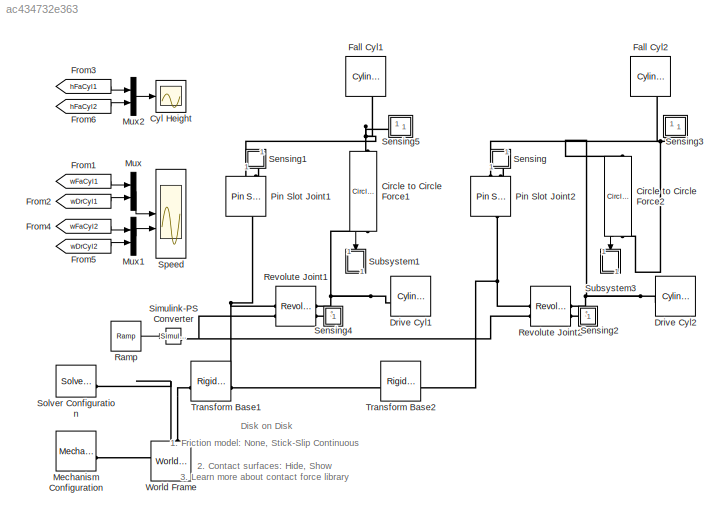
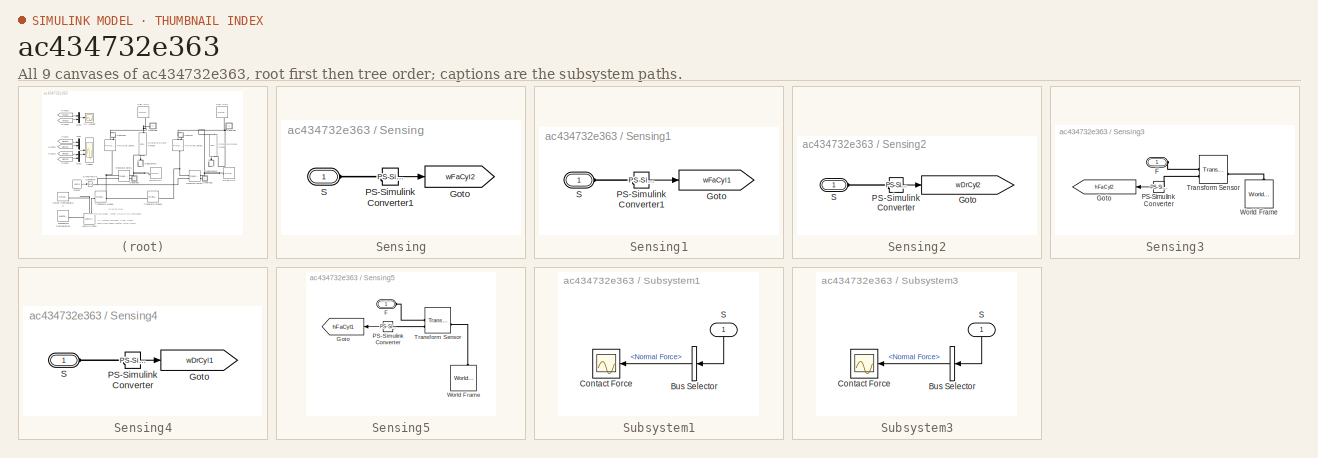
[diagram: thumbnail index - all 9 canvases of the model, root first then tree order]
MODEL slx_ac434732e363
KIND model
CONFIG AbsTol = 1e-5
CONFIG EnableMultiTasking = on
CONFIG FixedStep = auto
CONFIG MaxStep = 1e-2
CONFIG MinStep = auto
CONFIG PostLoadFcn = warning off Simulink:Engine:UsingDefaultMaxStepSize\n
CONFIG RelTol = 1e-4
CONFIG SampleTimeConstraint = Unconstrained
CONFIG SolverName = ode15s
CONFIG StartFcn = tic;
CONFIG StartTime = 0.0
CONFIG StopFcn = Elapsed_Sim_Time = toc;\ndisp(['Elapsed Sim Time = ' num2str(Elapsed_Sim_Time)]);\n
CONFIG StopTime = 15
WORKSPACE source: MATLAB code (in-file)
WORKSPACE code: Drive_Cyl.length = 0.2;
WORKSPACE code: Drive_Cyl.radius = 0.1;
WORKSPACE code: Drive_Cyl.density = 1000;
WORKSPACE code: Fall_Cyl.length = 0.2;
WORKSPACE code: Fall_Cyl.radius = 0.2;
WORKSPACE code: Fall_Cyl.density = 1000;
BLOCK [Reference] Circle to Circle Force1  REF=Contact_Forces_Lib/2D/Circle to Circle Force
  NameLocation = right
  SourceBlock = Contact_Forces_Lib/2D/Circle to Circle Force
  SourceProductName = Simscape Multibody Contact Forces Library
  SourceType = Circle to Circle Force
BLOCK [Reference] Circle to Circle Force2  REF=Contact_Forces_Lib/2D/Circle to Circle Force
  NameLocation = left
  SourceBlock = Contact_Forces_Lib/2D/Circle to Circle Force
  SourceProductName = Simscape Multibody Contact Forces Library
  SourceType = Circle to Circle Force
BLOCK [Scope] Cyl Height
  Floating = off
  NumInputPorts = 1
  ScopeSpecificationString = Simulink.scopes.TimeScopeBlockCfg('CurrentConfiguration', extmgr.ConfigurationSet(extmgr.Configuration('Core','General UI',true,'FigureColor',[0.501960784313725 0.501960784313725 0.501960784313725]),extmgr.Configuration('Core','Source UI',true),extmgr.Configuration('Sources','WiredSimulink',true,'DataLoggingVariableName','ScopeData2','DataLoggingSaveFormat','StructureWithTime','DataLoggingDecimati...<+2635ch>
BLOCK [Reference] Drive Cyl1  REF=Parts_Lib/Cylinder
  SourceBlock = Parts_Lib/Cylinder
  SourceType = Solid Cylinder with Markings
BLOCK [Reference] Drive Cyl2  REF=Parts_Lib/Cylinder
  SourceBlock = Parts_Lib/Cylinder
  SourceType = Solid Cylinder with Markings
BLOCK [Reference] Fall Cyl1  REF=Parts_Lib/Cylinder
  NameLocation = right
  SourceBlock = Parts_Lib/Cylinder
  SourceType = Solid Cylinder with Markings
BLOCK [Reference] Fall Cyl2  REF=Parts_Lib/Cylinder
  NameLocation = right
  SourceBlock = Parts_Lib/Cylinder
  SourceType = Solid Cylinder with Markings
BLOCK [From] From1
  GotoTag = wFaCyl1
  TagVisibility = global
BLOCK [From] From2
  GotoTag = wDrCyl1
  TagVisibility = global
BLOCK [From] From3
  GotoTag = hFaCyl1
  TagVisibility = global
BLOCK [From] From4
  GotoTag = wFaCyl2
  TagVisibility = global
BLOCK [From] From5
  GotoTag = wDrCyl2
  TagVisibility = global
BLOCK [From] From6
  GotoTag = hFaCyl2
  TagVisibility = global
BLOCK [Reference] Mechanism Configuration  REF=sm_lib/Utilities/Mechanism
Configuration
  SourceBlock = sm_lib/Utilities/Mechanism\nConfiguration
  SourceType = Mechanism\nConfiguration
BLOCK [Mux] Mux
  DisplayOption = bar
  Inputs = 2
BLOCK [Mux] Mux1
  DisplayOption = bar
  Inputs = 2
BLOCK [Mux] Mux2
  DisplayOption = bar
  Inputs = 2
BLOCK [Reference] Pin Slot Joint1  REF=sm_lib/Joints/Pin Slot Joint
  NameLocation = right
  SourceBlock = sm_lib/Joints/Pin Slot Joint
  SourceType = Pin Slot Joint
BLOCK [Reference] Pin Slot Joint2  REF=sm_lib/Joints/Pin Slot Joint
  NameLocation = right
  SourceBlock = sm_lib/Joints/Pin Slot Joint
  SourceType = Pin Slot Joint
BLOCK [Reference] Ramp  REF=simulink/Sources/Ramp
  SourceBlock = simulink/Sources/Ramp
  SourceType = Ramp
BLOCK [Reference] Revolute Joint1  REF=sm_lib/Joints/Revolute Joint
  NameLocation = top
  SourceBlock = sm_lib/Joints/Revolute Joint
  SourceType = Revolute Joint
BLOCK [Reference] Revolute Joint2  REF=sm_lib/Joints/Revolute Joint
  NameLocation = top
  SourceBlock = sm_lib/Joints/Revolute Joint
  SourceType = Revolute Joint
BLOCK [SubSystem] Sensing
  NameLocation = right
BLOCK [Goto] Sensing/Goto
  GotoTag = wFaCyl2
  TagVisibility = global
BLOCK [Reference] Sensing/PS-Simulink Converter1  REF=nesl_utility/PS-Simulink
Converter
  SourceBlock = nesl_utility/PS-Simulink\nConverter
  SourceType = PS-Simulink\nConverter
BLOCK [PMIOPort] Sensing/S
  Side = Left
BLOCK [SubSystem] Sensing1
  NameLocation = right
BLOCK [Goto] Sensing1/Goto
  GotoTag = wFaCyl1
  TagVisibility = global
BLOCK [Reference] Sensing1/PS-Simulink Converter1  REF=nesl_utility/PS-Simulink
Converter
  SourceBlock = nesl_utility/PS-Simulink\nConverter
  SourceType = PS-Simulink\nConverter
BLOCK [PMIOPort] Sensing1/S
  Side = Left
BLOCK [SubSystem] Sensing2
BLOCK [Goto] Sensing2/Goto
  GotoTag = wDrCyl2
  TagVisibility = global
BLOCK [Reference] Sensing2/PS-Simulink Converter  REF=nesl_utility/PS-Simulink
Converter
  SourceBlock = nesl_utility/PS-Simulink\nConverter
  SourceType = PS-Simulink\nConverter
BLOCK [PMIOPort] Sensing2/S
  Side = Left
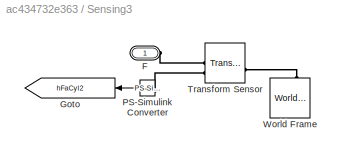
BLOCK [SubSystem] Sensing3
  NameLocation = top
BLOCK [PMIOPort] Sensing3/F
  NameLocation = top
  Side = Left
BLOCK [Goto] Sensing3/Goto
  GotoTag = hFaCyl2
  NameLocation = top
  TagVisibility = global
BLOCK [Reference] Sensing3/PS-Simulink Converter  REF=nesl_utility/PS-Simulink
Converter
  NameLocation = top
  SourceBlock = nesl_utility/PS-Simulink\nConverter
  SourceType = PS-Simulink\nConverter
BLOCK [Reference] Sensing3/Transform Sensor  REF=sm_lib/Frames and
Transforms/Transform
Sensor
  SourceBlock = sm_lib/Frames and\nTransforms/Transform\nSensor
  SourceType = Transform\nSensor
BLOCK [Reference] Sensing3/World Frame  REF=sm_lib/Frames and
Transforms/World Frame
  NameLocation = right
  SourceBlock = sm_lib/Frames and\nTransforms/World Frame
  SourceType = World Frame
BLOCK [SubSystem] Sensing4
BLOCK [Goto] Sensing4/Goto
  GotoTag = wDrCyl1
  TagVisibility = global
BLOCK [Reference] Sensing4/PS-Simulink Converter  REF=nesl_utility/PS-Simulink
Converter
  SourceBlock = nesl_utility/PS-Simulink\nConverter
  SourceType = PS-Simulink\nConverter
BLOCK [PMIOPort] Sensing4/S
  Side = Left
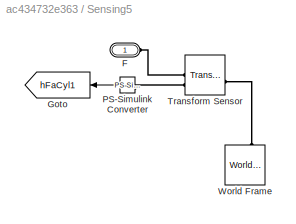
BLOCK [SubSystem] Sensing5
  NameLocation = top
BLOCK [PMIOPort] Sensing5/F
  NameLocation = top
  Side = Left
BLOCK [Goto] Sensing5/Goto
  GotoTag = hFaCyl1
  NameLocation = top
  TagVisibility = global
BLOCK [Reference] Sensing5/PS-Simulink Converter  REF=nesl_utility/PS-Simulink
Converter
  NameLocation = top
  SourceBlock = nesl_utility/PS-Simulink\nConverter
  SourceType = PS-Simulink\nConverter
BLOCK [Reference] Sensing5/Transform Sensor  REF=sm_lib/Frames and
Transforms/Transform
Sensor
  SourceBlock = sm_lib/Frames and\nTransforms/Transform\nSensor
  SourceType = Transform\nSensor
BLOCK [Reference] Sensing5/World Frame  REF=sm_lib/Frames and
Transforms/World Frame
  NameLocation = right
  SourceBlock = sm_lib/Frames and\nTransforms/World Frame
  SourceType = World Frame
BLOCK [Reference] Simulink-PS Converter  REF=nesl_utility/Simulink-PS
Converter
  SourceBlock = nesl_utility/Simulink-PS\nConverter
  SourceType = Simulink-PS\nConverter
BLOCK [Reference] Solver Configuration  REF=nesl_utility/Solver
Configuration
  SourceBlock = nesl_utility/Solver\nConfiguration
  SourceType = Solver\nConfiguration
BLOCK [Scope] Speed
  Floating = off
  NumInputPorts = 2
  ScopeSpecificationString = Simulink.scopes.TimeScopeBlockCfg('CurrentConfiguration', extmgr.ConfigurationSet(extmgr.Configuration('Core','General UI',true,'FigureColor',[0.501960784313725 0.501960784313725 0.501960784313725]),extmgr.Configuration('Core','Source UI',true),extmgr.Configuration('Sources','WiredSimulink',true,'DataLoggingSaveFormat','StructureWithTime','DataLoggingDecimation','1'),extmgr.Configuration('Visuals'...<+3985ch>
BLOCK [SubSystem] Subsystem1
  NameLocation = right
BLOCK [BusSelector] Subsystem1/Bus Selector
  NameLocation = top
  OutputSignals = Normal Force
BLOCK [Scope] Subsystem1/Contact Force
  Floating = off
  NumInputPorts = 1
  ScopeSpecificationString = Simulink.scopes.TimeScopeBlockCfg('CurrentConfiguration', extmgr.ConfigurationSet(extmgr.Configuration('Core','General UI',true,'FigureColor',[0.501960784313725 0.501960784313725 0.501960784313725]),extmgr.Configuration('Core','Source UI',true),extmgr.Configuration('Sources','WiredSimulink',true,'DataLoggingVariableName','ScopeData3','DataLoggingSaveFormat','StructureWithTime','DataLoggingDecimati...<+2631ch>
BLOCK [Inport] Subsystem1/S
  NameLocation = right
BLOCK [SubSystem] Subsystem3
  NameLocation = right
BLOCK [BusSelector] Subsystem3/Bus Selector
  NameLocation = top
  OutputSignals = Normal Force
BLOCK [Scope] Subsystem3/Contact Force
  Floating = off
  NumInputPorts = 1
  ScopeSpecificationString = Simulink.scopes.TimeScopeBlockCfg('CurrentConfiguration', extmgr.ConfigurationSet(extmgr.Configuration('Core','General UI',true,'FigureColor',[0.501960784313725 0.501960784313725 0.501960784313725]),extmgr.Configuration('Core','Source UI',true),extmgr.Configuration('Sources','WiredSimulink',true,'DataLoggingVariableName','ScopeData3','DataLoggingSaveFormat','StructureWithTime','DataLoggingDecimati...<+2631ch>
BLOCK [Inport] Subsystem3/S
  NameLocation = right
BLOCK [Reference] Transform Base1  REF=sm_lib/Frames and
Transforms/Rigid
Transform
  SourceBlock = sm_lib/Frames and\nTransforms/Rigid\nTransform
  SourceType = Rigid\nTransform
BLOCK [Reference] Transform Base2  REF=sm_lib/Frames and
Transforms/Rigid
Transform
  SourceBlock = sm_lib/Frames and\nTransforms/Rigid\nTransform
  SourceType = Rigid\nTransform
BLOCK [Reference] World Frame  REF=sm_lib/Frames and
Transforms/World Frame
  NameLocation = right
  SourceBlock = sm_lib/Frames and\nTransforms/World Frame
  SourceType = World Frame
ANNOTATION (root): 1. Friction model: None , Stick-Slip Continuous 2. Contact surfaces: Hide , Show 3. Learn more about contact force library
ANNOTATION (root): Disk on Disk
LINE Circle to Circle Force1:1 -> Subsystem1:1
LINE Circle to Circle Force2:1 -> Subsystem3:1
LINE From1:1 -> Mux:1
LINE From2:1 -> Mux:2
LINE From3:1 -> Mux2:1
LINE From4:1 -> Mux1:1
LINE From5:1 -> Mux1:2
LINE From6:1 -> Mux2:2
LINE Mux1:1 -> Speed:2
LINE Mux2:1 -> Cyl Height:1
LINE Mux:1 -> Speed:1
LINE Ramp:1 -> Simulink-PS Converter:1
LINE Sensing/PS-Simulink Converter1:1 -> Sensing/Goto:1
LINE Sensing1/PS-Simulink Converter1:1 -> Sensing1/Goto:1
LINE Sensing2/PS-Simulink Converter:1 -> Sensing2/Goto:1
LINE Sensing3/PS-Simulink Converter:1 -> Sensing3/Goto:1
LINE Sensing4/PS-Simulink Converter:1 -> Sensing4/Goto:1
LINE Sensing5/PS-Simulink Converter:1 -> Sensing5/Goto:1
LINE Subsystem1/Bus Selector:1 -> Subsystem1/Contact Force:1
LINE Subsystem1/S:1 -> Subsystem1/Bus Selector:1
LINE Subsystem3/Bus Selector:1 -> Subsystem3/Contact Force:1
LINE Subsystem3/S:1 -> Subsystem3/Bus Selector:1
PNET net1: Circle to Circle Force1:LConn1 -- Fall Cyl1:LConn1 -- Pin Slot Joint1:RConn1 -- Sensing5:LConn1
PNET net2: Circle to Circle Force1:RConn1 -- Drive Cyl1:LConn1 -- Revolute Joint1:RConn1
PNET net3: Circle to Circle Force2:LConn1 -- Drive Cyl2:LConn1 -- Revolute Joint2:RConn1
PNET net4: Circle to Circle Force2:RConn1 -- Fall Cyl2:LConn1 -- Pin Slot Joint2:RConn1 -- Sensing3:LConn1
PNET net5: Mechanism Configuration:RConn1 -- Solver Configuration:RConn1 -- Transform Base1:LConn1 -- World Frame:RConn1
PNET net6: Pin Slot Joint1:LConn1 -- Revolute Joint1:LConn1 -- Transform Base1:RConn1 -- Transform Base2:LConn1
PLINE Pin Slot Joint1:RConn2 -- Sensing1:LConn1
PNET net7: Pin Slot Joint2:LConn1 -- Revolute Joint2:LConn1 -- Transform Base2:RConn1
PLINE Pin Slot Joint2:RConn2 -- Sensing:LConn1
PNET net8: Revolute Joint1:LConn2 -- Revolute Joint2:LConn2 -- Simulink-PS Converter:RConn1
PLINE Revolute Joint1:RConn2 -- Sensing4:LConn1
PLINE Revolute Joint2:RConn2 -- Sensing2:LConn1
PLINE Sensing/PS-Simulink Converter1:LConn1 -- Sensing/S:RConn1
PLINE Sensing1/PS-Simulink Converter1:LConn1 -- Sensing1/S:RConn1
PLINE Sensing2/PS-Simulink Converter:LConn1 -- Sensing2/S:RConn1
PLINE Sensing3/F:RConn1 -- Sensing3/Transform Sensor:RConn1
PLINE Sensing3/PS-Simulink Converter:LConn1 -- Sensing3/Transform Sensor:RConn2
PLINE Sensing3/Transform Sensor:LConn1 -- Sensing3/World Frame:RConn1
PLINE Sensing4/PS-Simulink Converter:LConn1 -- Sensing4/S:RConn1
PLINE Sensing5/F:RConn1 -- Sensing5/Transform Sensor:RConn1
PLINE Sensing5/PS-Simulink Converter:LConn1 -- Sensing5/Transform Sensor:RConn2
PLINE Sensing5/Transform Sensor:LConn1 -- Sensing5/World Frame:RConn1
note: PNET lines group multi-terminal physical nets as a canonical sorted terminal list (undirected conserving connections); 2-terminal nets keep the pairwise PLINE form
